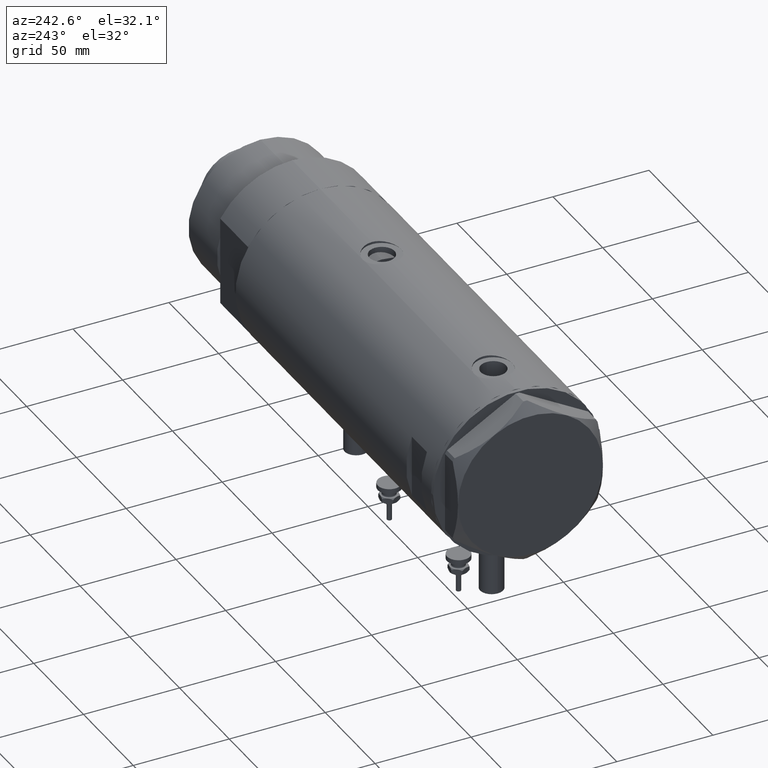
[diagram: clean part render]
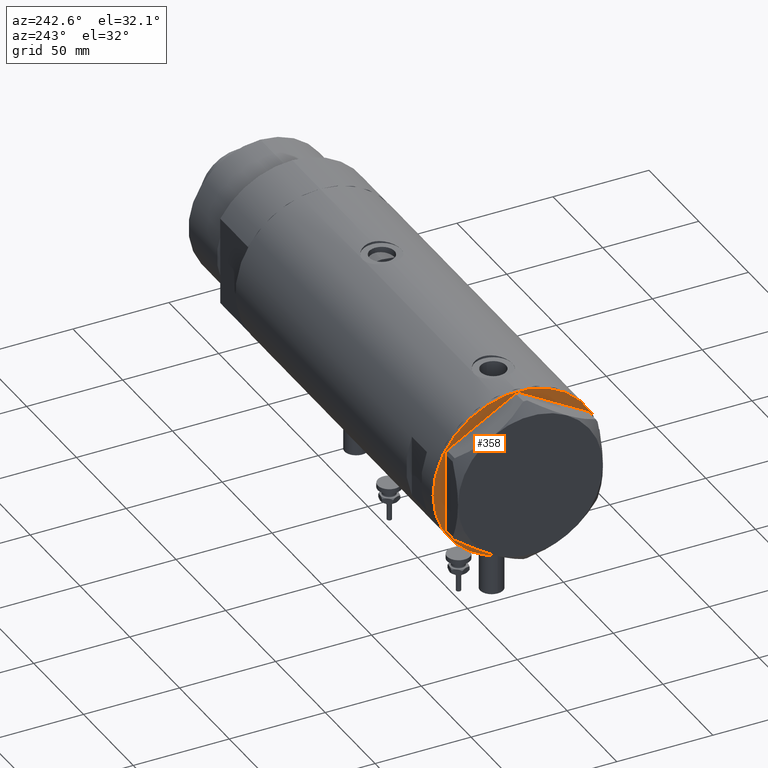
[diagram: same view with one face highlighted and labeled with its STEP entity id]
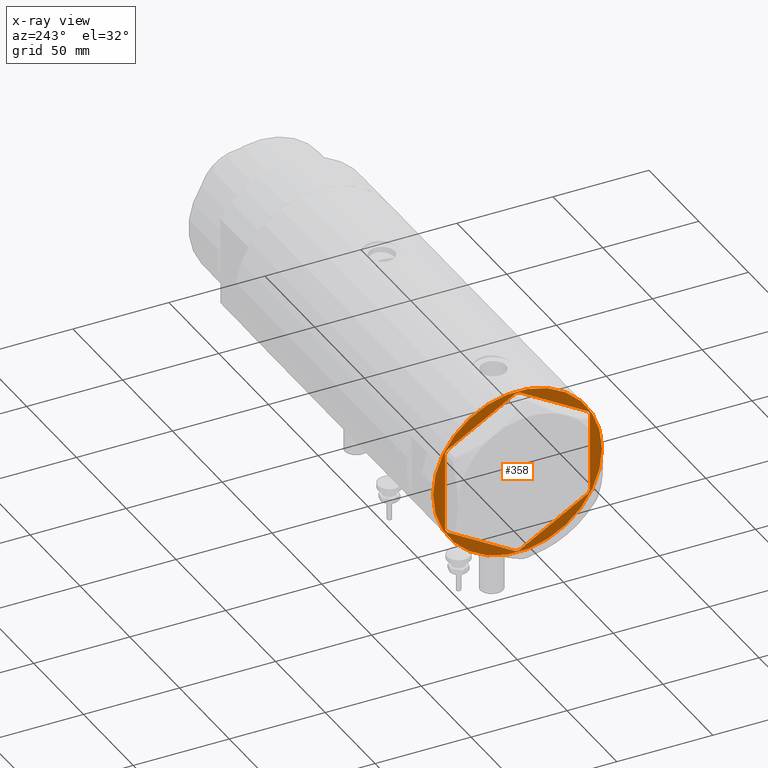
[diagram: x-ray of the same camera — body ghosted, the highlighted face saturated]
A machine part, auxiliary view. The second image highlights one B-rep face of the part: STEP entity #358.
The next image is the same camera in x-ray: the body ghosted, the highlighted face saturated — about 0% of this face is hidden behind the body in this view.
In plain terms, the highlighted planar face has unit normal (1, 0, -0).
Its self-contained STEP definition (entity closure, byte-faithful):
#1 = ORIENTED_EDGE ( 'NONE', *, *, #4905, .F. ) ;
#46 = CARTESIAN_POINT ( 'NONE',  ( 36.78005154776142405, 22.35497266190837706, 0.000000000000000000 ) ) ;
#49 = VERTEX_POINT ( 'NONE', #184 ) ;
#184 = CARTESIAN_POINT ( 'NONE',  ( -0.9699484522385920515, -43.02994532381674020, 0.000000000000000000 ) ) ;
#193 = FACE_BOUND ( 'NONE', #1409, .T. ) ;
#209 = EDGE_CURVE ( 'NONE', #1290, #2752, #2641, .T. ) ;
#239 = DIRECTION ( 'NONE',  ( 0.000000000000000000, 0.000000000000000000, -1.000000000000000000 ) ) ;
#325 = LINE ( 'NONE', #1577, #5627 ) ;
#358 = ADVANCED_FACE ( 'NONE', ( #193, #3236 ), #4265, .F. ) ;
#421 = DIRECTION ( 'NONE',  ( -0.4999999999999981681, -0.8660254037844395958, -0.000000000000000000 ) ) ;
#475 = LINE ( 'NONE', #506, #4681 ) ;
#506 = CARTESIAN_POINT ( 'NONE',  ( 37.26502577388077242, -21.51497266190830260, 0.000000000000000000 ) ) ;
#539 = ORIENTED_EDGE ( 'NONE', *, *, #3593, .F. ) ;
#598 = VERTEX_POINT ( 'NONE', #4016 ) ;
#803 = ORIENTED_EDGE ( 'NONE', *, *, #3310, .T. ) ;
#876 = CARTESIAN_POINT ( 'NONE',  ( 0.000000000000000000, 43.02994532381674020, 0.000000000000000000 ) ) ;
#959 = CARTESIAN_POINT ( 'NONE',  ( -37.74999999999999289, -20.67497266190837379, 0.000000000000000000 ) ) ;
#1031 = VERTEX_POINT ( 'NONE', #1059 ) ;
#1045 = VERTEX_POINT ( 'NONE', #46 ) ;
#1059 = CARTESIAN_POINT ( 'NONE',  ( 36.78005154776143115, -22.35497266190837706, 0.000000000000000000 ) ) ;
#1096 = LINE ( 'NONE', #4811, #5232 ) ;
#1145 = DIRECTION ( 'NONE',  ( -0.8660254037844385966, 0.5000000000000000000, 0.000000000000000000 ) ) ;
#1202 = EDGE_CURVE ( 'NONE', #5456, #5377, #4059, .T. ) ;
#1290 = VERTEX_POINT ( 'NONE', #3990 ) ;
#1409 = EDGE_LOOP ( 'NONE', ( #1571, #803, #539, #4809, #5387, #4629, #3430, #5291, #1, #3016, #3527, #4222 ) ) ;
#1440 = CARTESIAN_POINT ( 'NONE',  ( 37.26502577388072979, 21.51497266190834523, 0.000000000000000000 ) ) ;
#1466 = CARTESIAN_POINT ( 'NONE',  ( -36.78005154776141694, -22.35497266190838772, 0.000000000000000000 ) ) ;
#1472 = CARTESIAN_POINT ( 'NONE',  ( 44.00000000000000000, 0.000000000000000000, 0.000000000000000000 ) ) ;
#1497 = AXIS2_PLACEMENT_3D ( 'NONE', #2603, #4417, #4388 ) ;
#1504 = AXIS2_PLACEMENT_3D ( 'NONE', #5111, #4237, #5652 ) ;
#1543 = CARTESIAN_POINT ( 'NONE',  ( -44.00000000000000000, 5.388445916248353619E-15, 0.000000000000000000 ) ) ;
#1571 = ORIENTED_EDGE ( 'NONE', *, *, #4460, .F. ) ;
#1577 = CARTESIAN_POINT ( 'NONE',  ( -4.107234936485837051E-15, -43.58994532381674247, 0.000000000000000000 ) ) ;
#1655 = CARTESIAN_POINT ( 'NONE',  ( 0.000000000000000000, 0.000000000000000000, 0.000000000000000000 ) ) ;
#1673 = EDGE_LOOP ( 'NONE', ( #3599, #3172 ) ) ;
#1708 = EDGE_CURVE ( 'NONE', #5377, #5456, #2562, .T. ) ;
#1756 = EDGE_CURVE ( 'NONE', #3414, #598, #2261, .T. ) ;
#1793 = CARTESIAN_POINT ( 'NONE',  ( -37.75000000000000711, 21.79497266190837124, 0.000000000000000000 ) ) ;
#1881 = CARTESIAN_POINT ( 'NONE',  ( 0.000000000000000000, 43.58994532381674247, 0.000000000000000000 ) ) ;
#1897 = LINE ( 'NONE', #5194, #2787 ) ;
#1967 = VERTEX_POINT ( 'NONE', #3719 ) ;
#2203 = VECTOR ( 'NONE', #1145, 1000.000000000000227 ) ;
#2250 = CARTESIAN_POINT ( 'NONE',  ( 0.9699484522385760643, -43.02994532381674020, 0.000000000000000000 ) ) ;
#2261 = LINE ( 'NONE', #4693, #5981 ) ;
#2267 = DIRECTION ( 'NONE',  ( 1.000000000000000000, -0.000000000000000000, -0.000000000000000000 ) ) ;
#2310 = VECTOR ( 'NONE', #3666, 1000.000000000000000 ) ;
#2360 = VERTEX_POINT ( 'NONE', #1466 ) ;
#2425 = DIRECTION ( 'NONE',  ( -0.5000000000000002220, 0.8660254037844385966, -0.000000000000000000 ) ) ;
#2429 = CARTESIAN_POINT ( 'NONE',  ( 0.9699484522385850571, 43.02994532381674020, 0.000000000000000000 ) ) ;
#2430 = DIRECTION ( 'NONE',  ( -4.775569585389645902E-16, 1.000000000000000000, 0.000000000000000000 ) ) ;
#2471 = DIRECTION ( 'NONE',  ( -1.000000000000000000, -0.000000000000000000, -0.000000000000000000 ) ) ;
#2562 = CIRCLE ( 'NONE', #1497, 44.00000000000000000 ) ;
#2587 = AXIS2_PLACEMENT_3D ( 'NONE', #1655, #239, #5260 ) ;
#2603 = CARTESIAN_POINT ( 'NONE',  ( 0.000000000000000000, 0.000000000000000000, 0.000000000000000000 ) ) ;
#2641 = LINE ( 'NONE', #876, #4641 ) ;
#2645 = VERTEX_POINT ( 'NONE', #2250 ) ;
#2752 = VERTEX_POINT ( 'NONE', #2429 ) ;
#2787 = VECTOR ( 'NONE', #2430, 1000.000000000000000 ) ;
#2924 = LINE ( 'NONE', #1881, #4677 ) ;
#3016 = ORIENTED_EDGE ( 'NONE', *, *, #1756, .T. ) ;
#3024 = EDGE_CURVE ( 'NONE', #2360, #49, #5887, .T. ) ;
#3172 = ORIENTED_EDGE ( 'NONE', *, *, #1708, .F. ) ;
#3204 = DIRECTION ( 'NONE',  ( 0.8660254037844385966, -0.4999999999999998890, 0.000000000000000000 ) ) ;
#3212 = DIRECTION ( 'NONE',  ( 0.4999999999999978351, 0.8660254037844398178, -0.000000000000000000 ) ) ;
#3236 = FACE_OUTER_BOUND ( 'NONE', #1673, .T. ) ;
#3310 = EDGE_CURVE ( 'NONE', #1045, #1967, #4583, .T. ) ;
#3320 = CARTESIAN_POINT ( 'NONE',  ( 37.75000000000002132, -20.67497266190835958, 0.000000000000000000 ) ) ;
#3414 = VERTEX_POINT ( 'NONE', #5069 ) ;
#3430 = ORIENTED_EDGE ( 'NONE', *, *, #3024, .F. ) ;
#3479 = DIRECTION ( 'NONE',  ( 0.8660254037844388186, 0.4999999999999997224, 0.000000000000000000 ) ) ;
#3527 = ORIENTED_EDGE ( 'NONE', *, *, #5010, .F. ) ;
#3593 = EDGE_CURVE ( 'NONE', #4808, #1967, #1897, .T. ) ;
#3599 = ORIENTED_EDGE ( 'NONE', *, *, #1202, .F. ) ;
#3633 = DIRECTION ( 'NONE',  ( 0.4999999999999993894, -0.8660254037844390407, -0.000000000000000000 ) ) ;
#3666 = DIRECTION ( 'NONE',  ( 3.183713056926429451E-16, -1.000000000000000000, 0.000000000000000000 ) ) ;
#3719 = CARTESIAN_POINT ( 'NONE',  ( 37.75000000000000000, 20.67497266190835958, 0.000000000000000000 ) ) ;
#3750 = DIRECTION ( 'NONE',  ( -0.8660254037844387076, -0.4999999999999998890, 0.000000000000000000 ) ) ;
#3754 = VECTOR ( 'NONE', #3204, 1000.000000000000227 ) ;
#3787 = CARTESIAN_POINT ( 'NONE',  ( -37.26502577388070847, -21.51497266190838076, 0.000000000000000000 ) ) ;
#3849 = EDGE_CURVE ( 'NONE', #2360, #4889, #4726, .T. ) ;
#3948 = CARTESIAN_POINT ( 'NONE',  ( 37.75000000000000000, 21.79497266190837124, 0.000000000000000000 ) ) ;
#3990 = CARTESIAN_POINT ( 'NONE',  ( -0.9699484522385801721, 43.02994532381674020, 0.000000000000000000 ) ) ;
#4016 = CARTESIAN_POINT ( 'NONE',  ( -36.78005154776143826, 22.35497266190836996, 0.000000000000000000 ) ) ;
#4059 = CIRCLE ( 'NONE', #2587, 44.00000000000000000 ) ;
#4163 = LINE ( 'NONE', #1793, #2310 ) ;
#4222 = ORIENTED_EDGE ( 'NONE', *, *, #209, .T. ) ;
#4237 = DIRECTION ( 'NONE',  ( 0.000000000000000000, 0.000000000000000000, -1.000000000000000000 ) ) ;
#4265 = PLANE ( 'NONE',  #1504 ) ;
#4388 = DIRECTION ( 'NONE',  ( -1.000000000000000000, 0.000000000000000000, 0.000000000000000000 ) ) ;
#4417 = DIRECTION ( 'NONE',  ( 0.000000000000000000, 0.000000000000000000, -1.000000000000000000 ) ) ;
#4460 = EDGE_CURVE ( 'NONE', #1045, #2752, #5386, .T. ) ;
#4583 = LINE ( 'NONE', #1440, #5520 ) ;
#4609 = CARTESIAN_POINT ( 'NONE',  ( -37.74999999999999289, -21.79497266190838189, 0.000000000000000000 ) ) ;
#4629 = ORIENTED_EDGE ( 'NONE', *, *, #5455, .T. ) ;
#4641 = VECTOR ( 'NONE', #2267, 1000.000000000000000 ) ;
#4677 = VECTOR ( 'NONE', #3750, 1000.000000000000000 ) ;
#4681 = VECTOR ( 'NONE', #421, 1000.000000000000227 ) ;
#4693 = CARTESIAN_POINT ( 'NONE',  ( -37.26502577388077242, 21.51497266190828483, 0.000000000000000000 ) ) ;
#4726 = LINE ( 'NONE', #3787, #6004 ) ;
#4808 = VERTEX_POINT ( 'NONE', #3320 ) ;
#4809 = ORIENTED_EDGE ( 'NONE', *, *, #5700, .T. ) ;
#4811 = CARTESIAN_POINT ( 'NONE',  ( 0.000000000000000000, -43.02994532381674020, 0.000000000000000000 ) ) ;
#4889 = VERTEX_POINT ( 'NONE', #959 ) ;
#4905 = EDGE_CURVE ( 'NONE', #3414, #4889, #4163, .T. ) ;
#5010 = EDGE_CURVE ( 'NONE', #1290, #598, #2924, .T. ) ;
#5069 = CARTESIAN_POINT ( 'NONE',  ( -37.75000000000000711, 20.67497266190837024, 0.000000000000000000 ) ) ;
#5111 = CARTESIAN_POINT ( 'NONE',  ( 0.000000000000000000, 0.000000000000000000, 0.000000000000000000 ) ) ;
#5194 = CARTESIAN_POINT ( 'NONE',  ( 37.75000000000002132, -21.79497266190837124, 0.000000000000000000 ) ) ;
#5232 = VECTOR ( 'NONE', #2471, 1000.000000000000000 ) ;
#5260 = DIRECTION ( 'NONE',  ( -1.000000000000000000, 0.000000000000000000, 0.000000000000000000 ) ) ;
#5291 = ORIENTED_EDGE ( 'NONE', *, *, #3849, .T. ) ;
#5377 = VERTEX_POINT ( 'NONE', #1543 ) ;
#5386 = LINE ( 'NONE', #3948, #2203 ) ;
#5387 = ORIENTED_EDGE ( 'NONE', *, *, #5816, .F. ) ;
#5455 = EDGE_CURVE ( 'NONE', #2645, #49, #1096, .T. ) ;
#5456 = VERTEX_POINT ( 'NONE', #1472 ) ;
#5520 = VECTOR ( 'NONE', #3633, 999.9999999999998863 ) ;
#5627 = VECTOR ( 'NONE', #3479, 1000.000000000000114 ) ;
#5652 = DIRECTION ( 'NONE',  ( -1.000000000000000000, 0.000000000000000000, -0.000000000000000000 ) ) ;
#5700 = EDGE_CURVE ( 'NONE', #4808, #1031, #475, .T. ) ;
#5816 = EDGE_CURVE ( 'NONE', #2645, #1031, #325, .T. ) ;
#5887 = LINE ( 'NONE', #4609, #3754 ) ;
#5981 = VECTOR ( 'NONE', #3212, 1000.000000000000114 ) ;
#6004 = VECTOR ( 'NONE', #2425, 999.9999999999998863 ) ;